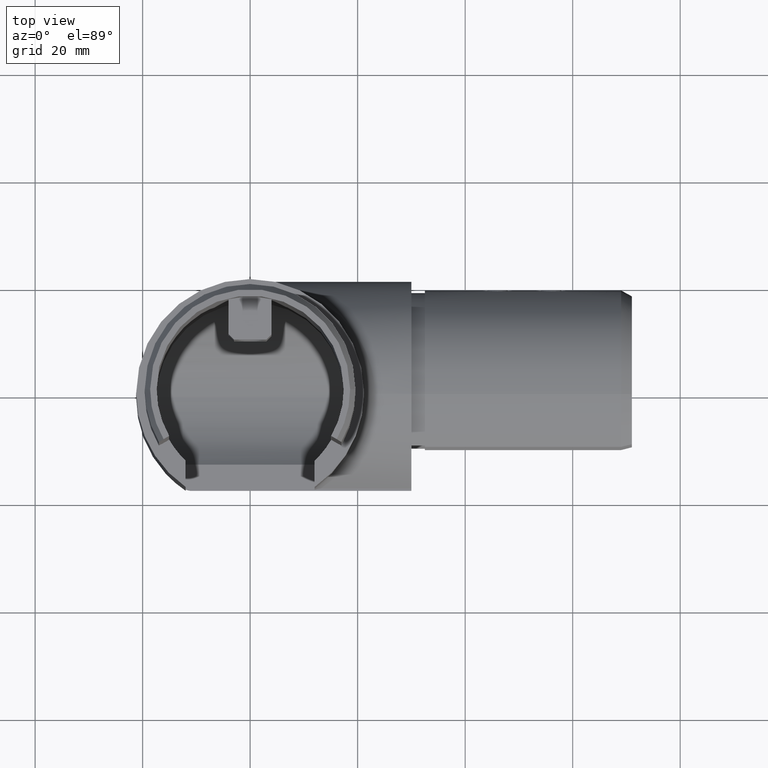
[diagram: clean part render]
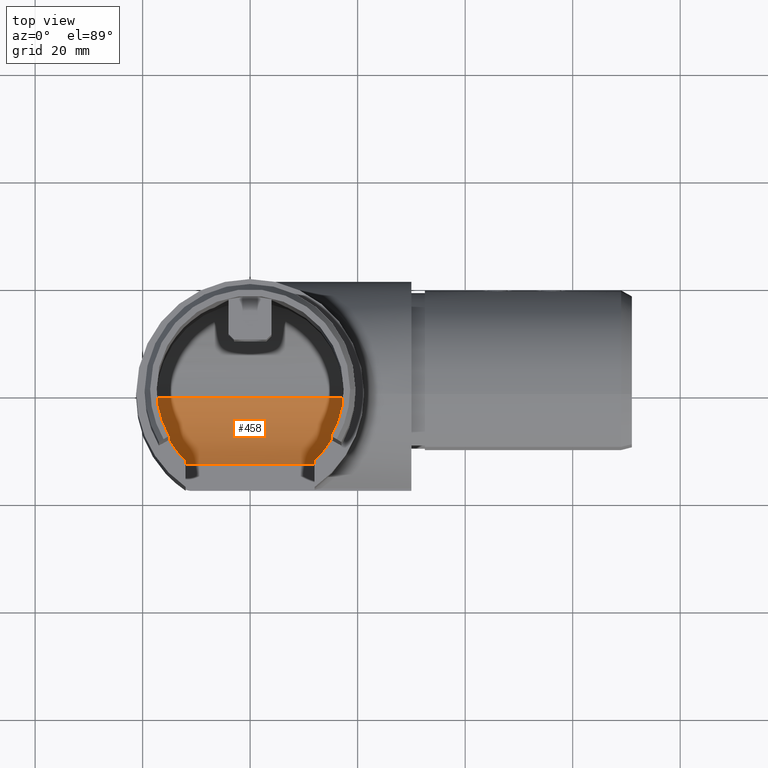
[diagram: same view with one face highlighted and labeled with its STEP entity id]
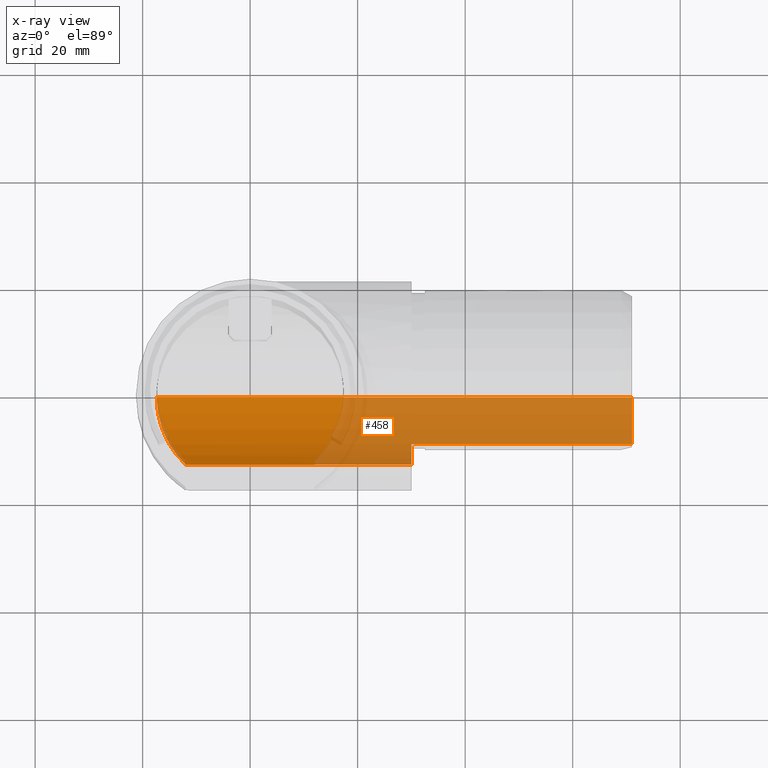
[diagram: x-ray of the same camera — body ghosted, the highlighted face saturated]
A machine part, top view. The second image highlights one B-rep face of the part: STEP entity #458.
The next image is the same camera in x-ray: the body ghosted, the highlighted face saturated — about 59% of this face is hidden behind the body in this view.
In plain terms, the highlighted cylindrical surface (partial cylindrical patch) has radius 17.4 mm, axis along (1, 0, 0).
Its self-contained STEP definition (entity closure, byte-faithful):
#22 = EDGE_CURVE ( 'NONE', #3496, #19139, #9780, .T. ) ;
#215 = ORIENTED_EDGE ( 'NONE', *, *, #7228, .F. ) ;
#458 = ADVANCED_FACE ( 'NONE', ( #14657 ), #2398, .F. ) ;
#1452 = CARTESIAN_POINT ( 'NONE',  ( 0.0000000000000000000, 0.0000000000000000000, 0.0000000000000000000 ) ) ;
#1966 = AXIS2_PLACEMENT_3D ( 'NONE', #1452, #4864, #3401 ) ;
#2398 = CYLINDRICAL_SURFACE ( 'NONE', #1966, 17.40000000000000200 ) ;
#2598 = ORIENTED_EDGE ( 'NONE', *, *, #22, .T. ) ;
#3337 = EDGE_LOOP ( 'NONE', ( #10137, #2598, #4846, #3942, #215, #10559 ) ) ;
#3401 = DIRECTION ( 'NONE',  ( 0.0000000000000000000, 0.0000000000000000000, -1.000000000000000000 ) ) ;
#3496 = VERTEX_POINT ( 'NONE', #10127 ) ;
#3741 = VERTEX_POINT ( 'NONE', #4281 ) ;
#3942 = ORIENTED_EDGE ( 'NONE', *, *, #18745, .T. ) ;
#4172 = CARTESIAN_POINT ( 'NONE',  ( 30.00000000000000000, -12.60000000000000900, -11.99999999999999500 ) ) ;
#4281 = CARTESIAN_POINT ( 'NONE',  ( 71.00000000000001400, -8.700000378167198200, -15.06884180751433000 ) ) ;
#4287 = DIRECTION ( 'NONE',  ( -1.000000000000000000, -0.0000000000000000000, 4.440892098500625700E-016 ) ) ;
#4360 = DIRECTION ( 'NONE',  ( 1.000000000000000000, 0.0000000000000000000, 0.0000000000000000000 ) ) ;
#4806 = DIRECTION ( 'NONE',  ( 1.000000000000000000, 0.0000000000000000000, 0.0000000000000000000 ) ) ;
#4846 = ORIENTED_EDGE ( 'NONE', *, *, #16384, .T. ) ;
#4864 = DIRECTION ( 'NONE',  ( 1.000000000000000000, 0.0000000000000000000, 0.0000000000000000000 ) ) ;
#5008 = CARTESIAN_POINT ( 'NONE',  ( -17.40000000000000200, -4.829806432955133600, -17.40000000000000200 ) ) ;
#5101 = VECTOR ( 'NONE', #4287, 1000.000000000000000 ) ;
#5619 = CIRCLE ( 'NONE', #20077, 17.40000000000000600 ) ;
#5898 = DIRECTION ( 'NONE',  ( 0.0000000000000000000, 0.0000000000000000000, 1.000000000000000000 ) ) ;
#6763 = CARTESIAN_POINT ( 'NONE',  ( -17.40000000000000200, 0.0000000000000000000, -17.40000000000000200 ) ) ;
#6830 = CARTESIAN_POINT ( 'NONE',  ( -11.99999999999999800, -12.60000000000000300, -11.99999999999998900 ) ) ;
#6866 = VERTEX_POINT ( 'NONE', #4172 ) ;
#7228 = EDGE_CURVE ( 'NONE', #3741, #20078, #13688, .T. ) ;
#7671 = EDGE_CURVE ( 'NONE', #3496, #18890, #18311, .T. ) ;
#8244 = CIRCLE ( 'NONE', #19371, 17.40000000000000200 ) ;
#8248 = CARTESIAN_POINT ( 'NONE',  ( -11.99999999999999800, -12.60000000000000300, -11.99999999999998900 ) ) ;
#9049 = CARTESIAN_POINT ( 'NONE',  ( 30.00000000000000000, -8.700000378167191100, -15.06884180751430200 ) ) ;
#9176 = CARTESIAN_POINT ( 'NONE',  ( 71.00000000000001400, 0.0000000000000000000, -3.153033389935443900E-014 ) ) ;
#9780 =( BOUNDED_CURVE ( )  B_SPLINE_CURVE ( 3, ( #6763, #5008, #18350, #6830 ),
 .UNSPECIFIED., .F., .T. ) 
 B_SPLINE_CURVE_WITH_KNOTS ( ( 4, 4 ),
 ( 3.141592653589793100, 3.951376226159960300 ),
 .UNSPECIFIED. ) 
 CURVE ( )  GEOMETRIC_REPRESENTATION_ITEM ( )  RATIONAL_B_SPLINE_CURVE ( ( 1.000000000000000000, 0.9460966866787050600, 0.9460966866787050600, 1.000000000000000000 ) ) 
 REPRESENTATION_ITEM ( '' )  );
#10127 = CARTESIAN_POINT ( 'NONE',  ( -17.40000000000000200, 0.0000000000000000000, -17.40000000000000200 ) ) ;
#10137 = ORIENTED_EDGE ( 'NONE', *, *, #7671, .F. ) ;
#10559 = ORIENTED_EDGE ( 'NONE', *, *, #19942, .T. ) ;
#10975 = CARTESIAN_POINT ( 'NONE',  ( -11.99999999999999800, -12.60000000000000300, -11.99999999999998900 ) ) ;
#11050 = DIRECTION ( 'NONE',  ( 1.000000000000000000, 0.0000000000000000000, 0.0000000000000000000 ) ) ;
#11574 = CARTESIAN_POINT ( 'NONE',  ( 30.00000000000000000, 0.0000000000000000000, 0.0000000000000000000 ) ) ;
#12445 = CARTESIAN_POINT ( 'NONE',  ( 0.0000000000000000000, 0.0000000000000000000, -17.40000000000000200 ) ) ;
#12668 = DIRECTION ( 'NONE',  ( 1.000000000000000000, 0.0000000000000000000, -4.440892098500625200E-016 ) ) ;
#13688 = LINE ( 'NONE', #14257, #5101 ) ;
#14257 = CARTESIAN_POINT ( 'NONE',  ( 32.49999999999999300, -8.700000378167198200, -15.06884180751431400 ) ) ;
#14657 = FACE_OUTER_BOUND ( 'NONE', #3337, .T. ) ;
#15386 = CARTESIAN_POINT ( 'NONE',  ( 71.00000000000000000, 0.0000000000000000000, -17.40000000000003800 ) ) ;
#16384 = EDGE_CURVE ( 'NONE', #19139, #6866, #20534, .T. ) ;
#16609 = VECTOR ( 'NONE', #11050, 1000.000000000000000 ) ;
#18311 = LINE ( 'NONE', #12445, #21460 ) ;
#18350 = CARTESIAN_POINT ( 'NONE',  ( -15.49744603765716500, -9.269099011755088200, -15.49744603765716500 ) ) ;
#18745 = EDGE_CURVE ( 'NONE', #6866, #20078, #8244, .T. ) ;
#18890 = VERTEX_POINT ( 'NONE', #15386 ) ;
#19139 = VERTEX_POINT ( 'NONE', #8248 ) ;
#19371 = AXIS2_PLACEMENT_3D ( 'NONE', #11574, #4806, #21508 ) ;
#19942 = EDGE_CURVE ( 'NONE', #3741, #18890, #5619, .T. ) ;
#20077 = AXIS2_PLACEMENT_3D ( 'NONE', #9176, #12668, #5898 ) ;
#20078 = VERTEX_POINT ( 'NONE', #9049 ) ;
#20534 = LINE ( 'NONE', #10975, #16609 ) ;
#21460 = VECTOR ( 'NONE', #4360, 1000.000000000000000 ) ;
#21508 = DIRECTION ( 'NONE',  ( 0.0000000000000000000, 0.0000000000000000000, -1.000000000000000000 ) ) ;